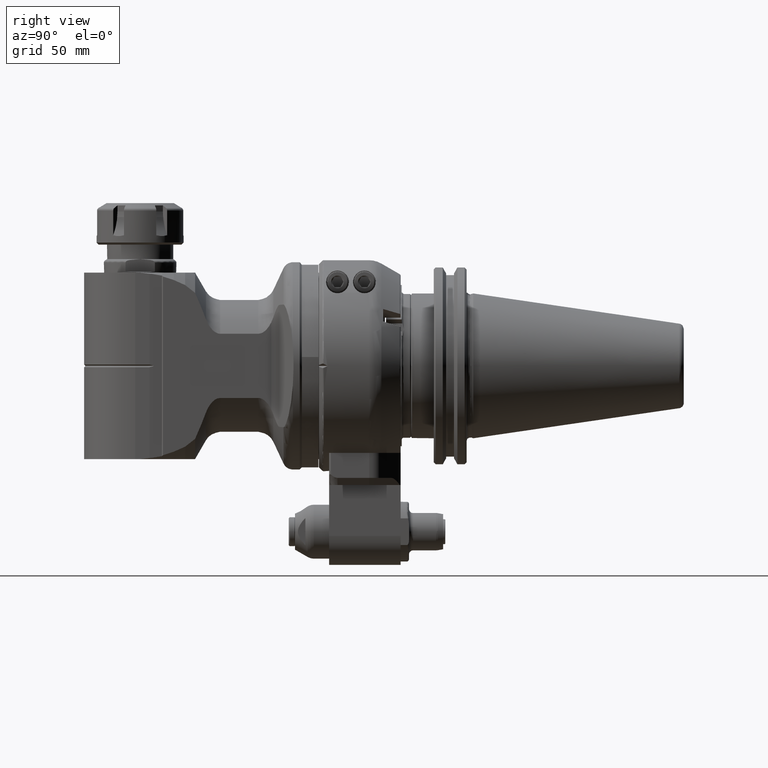
[diagram: clean part render]
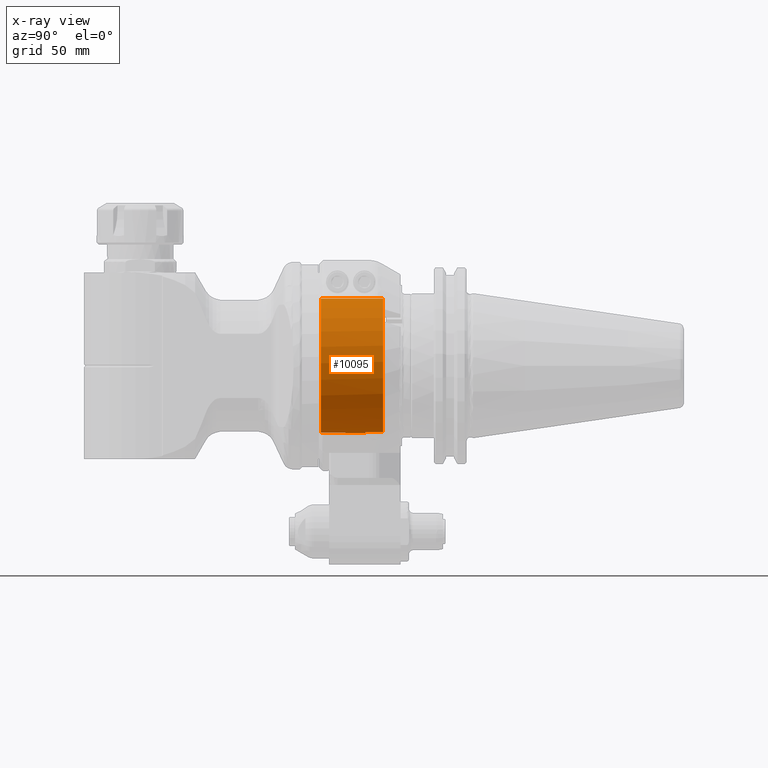
[diagram: x-ray — body ghosted, one internal face saturated and labeled with its STEP entity id]
A machine part, right view, then the same camera in x-ray: the body is ghosted and one INTERNAL B-rep face — a face not visible from any outside direction — is saturated and labeled: STEP entity #10095.
In plain terms, the highlighted cylindrical surface (partial cylindrical patch) has radius 32.5 mm, axis along (0, -1, 0).
Its self-contained STEP definition (entity closure, byte-faithful):
#667=CYLINDRICAL_SURFACE('',#11064,32.5);
#994=CIRCLE('',#11015,32.5);
#1016=CIRCLE('',#11065,32.5);
#1017=CIRCLE('',#11066,32.5);
#1018=CIRCLE('',#11067,32.5);
#1592=FACE_OUTER_BOUND('',#2247,.T.);
#2247=EDGE_LOOP('',(#7903,#7904,#7905,#7906,#7907,#7908,#7909,#7910));
#2913=LINE('',#18239,#3583);
#2914=LINE('',#18242,#3584);
#2915=LINE('',#18246,#3585);
#2916=LINE('',#18250,#3586);
#3583=VECTOR('',#13164,8.5);
#3584=VECTOR('',#13167,8.5);
#3585=VECTOR('',#13170,30.);
#3586=VECTOR('',#13173,29.99999999998);
#4417=VERTEX_POINT('',#17350);
#4418=VERTEX_POINT('',#17352);
#4456=VERTEX_POINT('',#18237);
#4457=VERTEX_POINT('',#18241);
#4458=VERTEX_POINT('',#18243);
#4459=VERTEX_POINT('',#18245);
#4460=VERTEX_POINT('',#18247);
#4461=VERTEX_POINT('',#18249);
#5624=EDGE_CURVE('',#4418,#4417,#994,.T.);
#5694=EDGE_CURVE('',#4417,#4456,#2913,.T.);
#5695=EDGE_CURVE('',#4418,#4457,#2914,.T.);
#5696=EDGE_CURVE('',#4458,#4456,#1016,.T.);
#5697=EDGE_CURVE('',#4458,#4459,#2915,.T.);
#5698=EDGE_CURVE('',#4460,#4459,#1017,.T.);
#5699=EDGE_CURVE('',#4460,#4461,#2916,.T.);
#5700=EDGE_CURVE('',#4457,#4461,#1018,.T.);
#7903=ORIENTED_EDGE('',*,*,#5695,.F.);
#7904=ORIENTED_EDGE('',*,*,#5624,.T.);
#7905=ORIENTED_EDGE('',*,*,#5694,.T.);
#7906=ORIENTED_EDGE('',*,*,#5696,.F.);
#7907=ORIENTED_EDGE('',*,*,#5697,.T.);
#7908=ORIENTED_EDGE('',*,*,#5698,.F.);
#7909=ORIENTED_EDGE('',*,*,#5699,.T.);
#7910=ORIENTED_EDGE('',*,*,#5700,.F.);
#10095=ADVANCED_FACE('',(#1592),#667,.F.);
#11015=AXIS2_PLACEMENT_3D('',#17353,#13033,#13034);
#11064=AXIS2_PLACEMENT_3D('',#18240,#13165,#13166);
#11065=AXIS2_PLACEMENT_3D('',#18244,#13168,#13169);
#11066=AXIS2_PLACEMENT_3D('',#18248,#13171,#13172);
#11067=AXIS2_PLACEMENT_3D('',#18251,#13174,#13175);
#13033=DIRECTION('center_axis',(0.,1.,0.));
#13034=DIRECTION('ref_axis',(0.164179104477598,0.,-0.986430545782588));
#13164=DIRECTION('',(0.,1.,0.));
#13165=DIRECTION('center_axis',(0.,-1.,0.));
#13166=DIRECTION('ref_axis',(1.38678298153134E-13,0.,-1.));
#13167=DIRECTION('',(0.,1.,0.));
#13168=DIRECTION('center_axis',(0.,-1.,0.));
#13169=DIRECTION('ref_axis',(-0.0461538461538519,0.,0.998934343430642));
#13170=DIRECTION('',(0.,-1.,0.));
#13171=DIRECTION('center_axis',(0.,1.,0.));
#13172=DIRECTION('ref_axis',(0.,0.,-1.));
#13173=DIRECTION('',(3.148370453234E-13,1.,-1.421085471521E-14));
#13174=DIRECTION('center_axis',(0.,-1.,0.));
#13175=DIRECTION('ref_axis',(0.164179104477598,0.,-0.986430545782588));
#17350=CARTESIAN_POINT('',(-5.335820895522,22.5,-32.05899273793));
#17352=CARTESIAN_POINT('',(5.335820895522,22.5,-32.05899273793));
#17353=CARTESIAN_POINT('Origin',(0.,22.5,0.));
#18237=CARTESIAN_POINT('',(-5.335820895522,31.,-32.05899273793));
#18239=CARTESIAN_POINT('',(-5.335820895522,22.5,-32.05899273793));
#18240=CARTESIAN_POINT('Origin',(0.,16.5,0.));
#18241=CARTESIAN_POINT('',(5.335820895522,31.,-32.05899273793));
#18242=CARTESIAN_POINT('',(5.335820895522,22.5,-32.05899273793));
#18243=CARTESIAN_POINT('',(-1.5,31.,32.4653661615));
#18244=CARTESIAN_POINT('Origin',(0.,31.,0.));
#18245=CARTESIAN_POINT('',(-1.5,1.,32.4653661615));
#18246=CARTESIAN_POINT('',(-1.5,31.,32.4653661615));
#18247=CARTESIAN_POINT('',(1.499999999991,1.000000000023,32.4653661615));
#18248=CARTESIAN_POINT('Origin',(0.,0.9999999999999,0.));
#18249=CARTESIAN_POINT('',(1.5,31.,32.4653661615));
#18250=CARTESIAN_POINT('',(1.499999999991,1.000000000023,32.4653661615));
#18251=CARTESIAN_POINT('Origin',(0.,31.,0.));